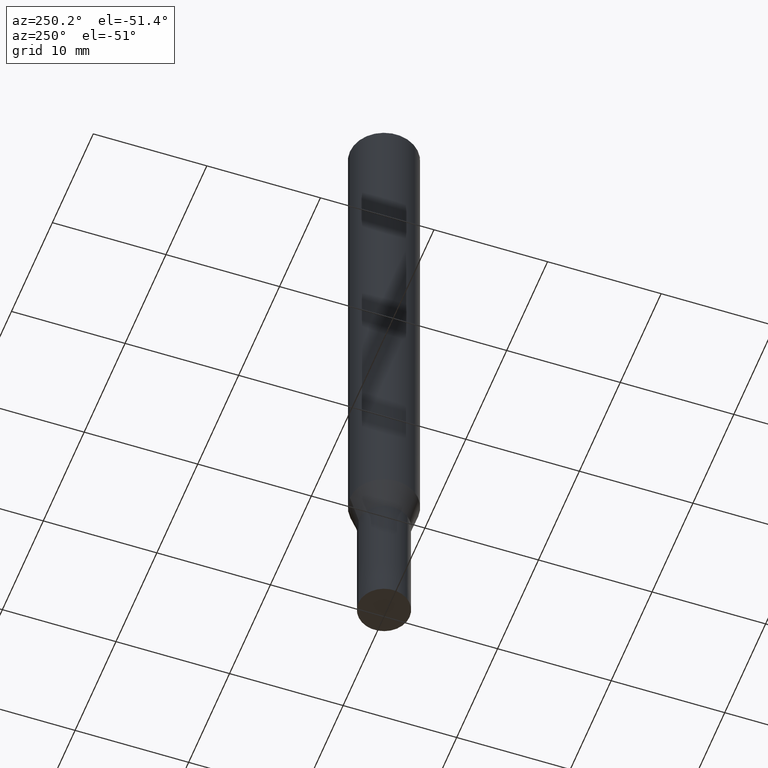
[diagram: clean part render]
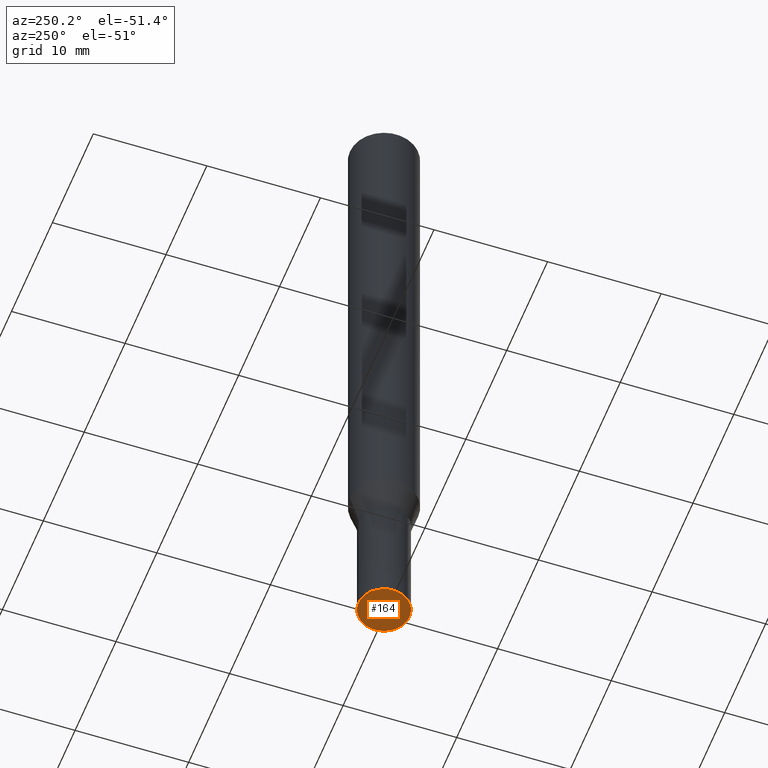
[diagram: same view with one face highlighted and labeled with its STEP entity id]
A machine part, auxiliary view. The second image highlights one B-rep face of the part: STEP entity #164.
In plain terms, the highlighted planar face has unit normal (0, 0, -1).
Its self-contained STEP definition (entity closure, byte-faithful):
#96=EDGE_CURVE('',#108,#156,#219,.T.);
#104=EDGE_CURVE('',#156,#108,#228,.T.);
#108=VERTEX_POINT('',#232);
#156=VERTEX_POINT('',#286);
#164=ADVANCED_FACE('',(#294),#295,.T.);
#219=CIRCLE('',#351,2.25);
#228=CIRCLE('',#362,2.25);
#232=CARTESIAN_POINT('',(0.0,2.25,-60.0));
#286=CARTESIAN_POINT('',(2.75536429610035E-016,-2.25,-60.0));
#294=FACE_OUTER_BOUND('',#446,.T.);
#295=PLANE('',#447);
#351=AXIS2_PLACEMENT_3D('',#499,#500,#501);
#362=AXIS2_PLACEMENT_3D('',#513,#514,#515);
#446=EDGE_LOOP('',(#589,#590));
#447=AXIS2_PLACEMENT_3D('',#591,#592,#593);
#499=CARTESIAN_POINT('',(0.0,0.0,-60.0));
#500=DIRECTION('',(0.0,0.0,-1.0));
#501=DIRECTION('',(0.0,1.0,0.0));
#513=CARTESIAN_POINT('',(0.0,0.0,-60.0));
#514=DIRECTION('',(0.0,0.0,-1.0));
#515=DIRECTION('',(0.0,1.0,0.0));
#589=ORIENTED_EDGE('',*,*,#96,.T.);
#590=ORIENTED_EDGE('',*,*,#104,.T.);
#591=CARTESIAN_POINT('',(0.0,1.1225,-60.0));
#592=DIRECTION('',(0.0,0.0,-1.0));
#593=DIRECTION('',(0.0,1.0,0.0));